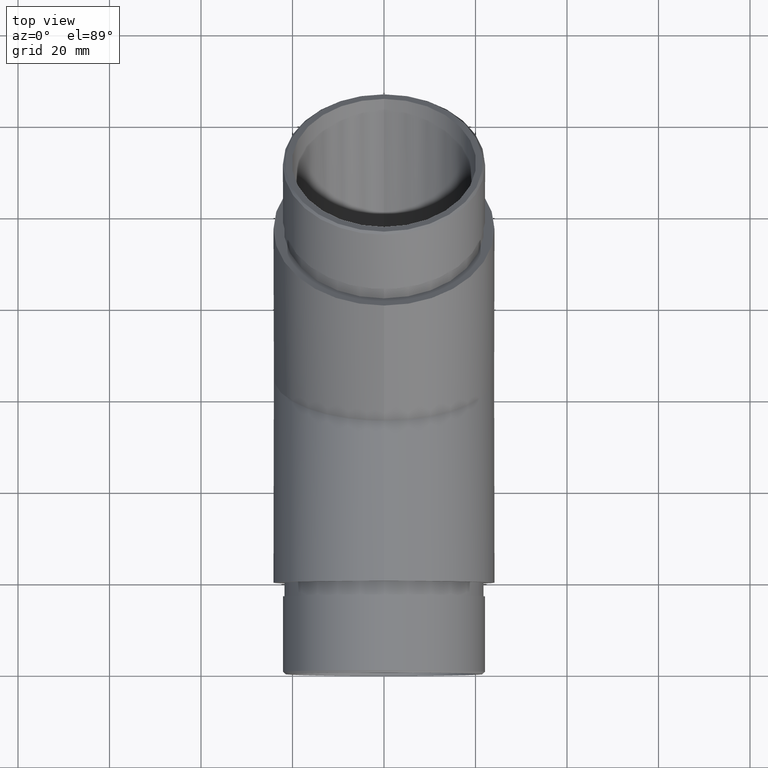
[diagram: clean part render]
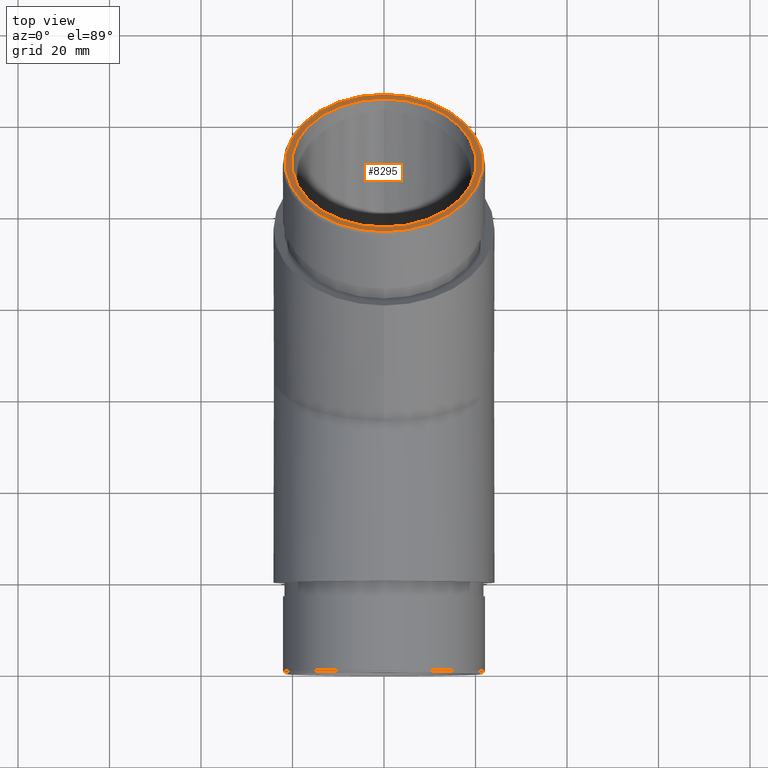
[diagram: same view with one face highlighted and labeled with its STEP entity id]
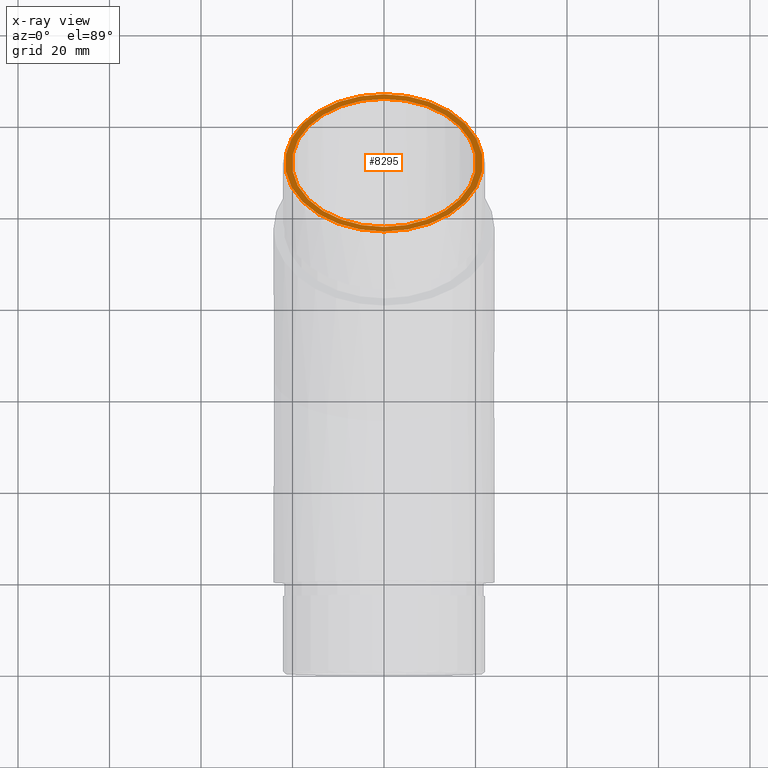
[diagram: x-ray of the same camera — body ghosted, the highlighted face saturated]
A machine part, top view. The second image highlights one B-rep face of the part: STEP entity #8295.
The next image is the same camera in x-ray: the body ghosted, the highlighted face saturated — about 0% of this face is hidden behind the body in this view.
In plain terms, the highlighted planar face has unit normal (0, 0.7071, 0.7071).
Its self-contained STEP definition (entity closure, byte-faithful):
#777 = EDGE_CURVE ( 'NONE', #10200, #10200, #6497, .T. ) ;
#974 = AXIS2_PLACEMENT_3D ( 'NONE', #8879, #10678, #5167 ) ;
#1549 = AXIS2_PLACEMENT_3D ( 'NONE', #8798, #9636, #5169 ) ;
#4063 = FACE_BOUND ( 'NONE', #10258, .T. ) ;
#5167 = DIRECTION ( 'NONE',  ( 0.0000000000000000000, -0.7071067811865493500, 0.7071067811865458000 ) ) ;
#5169 = DIRECTION ( 'NONE',  ( 0.0000000000000000000, 0.7071067811865492400, -0.7071067811865458000 ) ) ;
#5395 = ORIENTED_EDGE ( 'NONE', *, *, #9967, .T. ) ;
#5524 = EDGE_LOOP ( 'NONE', ( #7968 ) ) ;
#6008 = PLANE ( 'NONE',  #8371 ) ;
#6497 = CIRCLE ( 'NONE', #974, 21.59999999999995500 ) ;
#6503 = FACE_OUTER_BOUND ( 'NONE', #5524, .T. ) ;
#6888 = VERTEX_POINT ( 'NONE', #9190 ) ;
#6949 = CARTESIAN_POINT ( 'NONE',  ( 0.0000000000000000000, 90.95637982333582300, 45.95963735464629700 ) ) ;
#7968 = ORIENTED_EDGE ( 'NONE', *, *, #777, .T. ) ;
#8295 = ADVANCED_FACE ( 'NONE', ( #6503, #4063 ), #6008, .T. ) ;
#8371 = AXIS2_PLACEMENT_3D ( 'NONE', #6949, #10851, #11750 ) ;
#8798 = CARTESIAN_POINT ( 'NONE',  ( 0.0000000000000000000, 90.95637982333582300, 45.95963735464629700 ) ) ;
#8879 = CARTESIAN_POINT ( 'NONE',  ( 0.0000000000000000000, 90.95637982333582300, 45.95963735464629700 ) ) ;
#9190 = CARTESIAN_POINT ( 'NONE',  ( 0.0000000000000000000, 105.2045814642447800, 31.71143571373739800 ) ) ;
#9636 = DIRECTION ( 'NONE',  ( -0.0000000000000000000, -0.7071067811865459100, -0.7071067811865492400 ) ) ;
#9935 = CIRCLE ( 'NONE', #1549, 20.14999999999999900 ) ;
#9967 = EDGE_CURVE ( 'NONE', #6888, #6888, #9935, .T. ) ;
#10200 = VERTEX_POINT ( 'NONE', #11033 ) ;
#10258 = EDGE_LOOP ( 'NONE', ( #5395 ) ) ;
#10678 = DIRECTION ( 'NONE',  ( 0.0000000000000000000, 0.7071067811865459100, 0.7071067811865492400 ) ) ;
#10851 = DIRECTION ( 'NONE',  ( 0.0000000000000000000, 0.7071067811865458000, 0.7071067811865492400 ) ) ;
#11033 = CARTESIAN_POINT ( 'NONE',  ( 0.0000000000000000000, 75.68287334970638400, 61.23314382827565100 ) ) ;
#11750 = DIRECTION ( 'NONE',  ( 0.0000000000000000000, 0.7071067811865492400, -0.7071067811865458000 ) ) ;